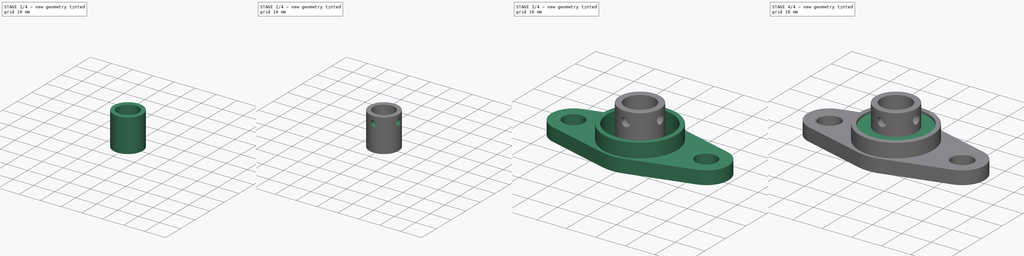
[diagram: build sequence overview — one tinted view per stage of 4, left to right]
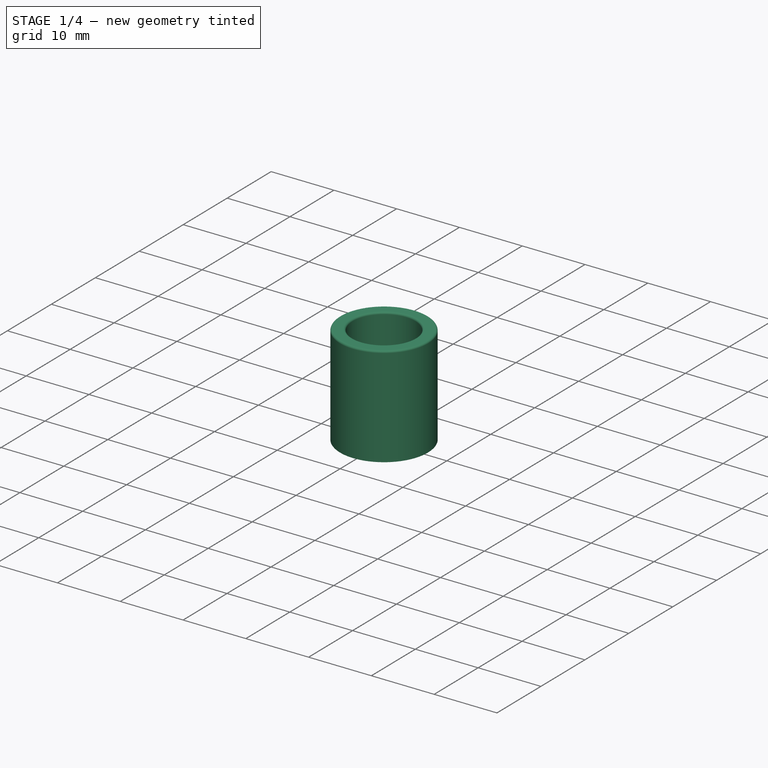
[diagram: stage 1 of 4 — iso view after this stage's code; geometry added in this stage tinted green]
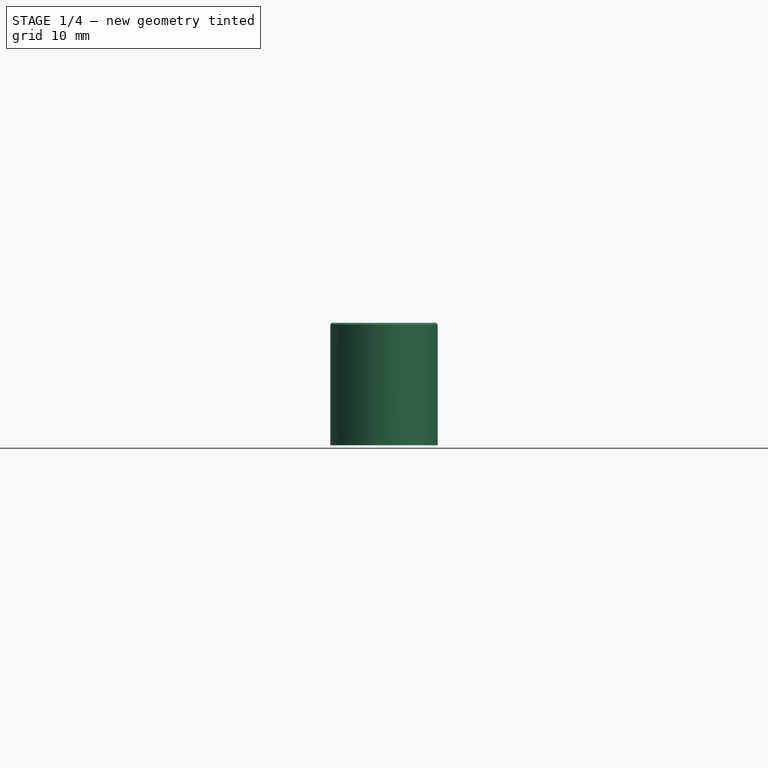
[diagram: stage 1 of 4 — front view after this stage's code; geometry added in this stage tinted green]
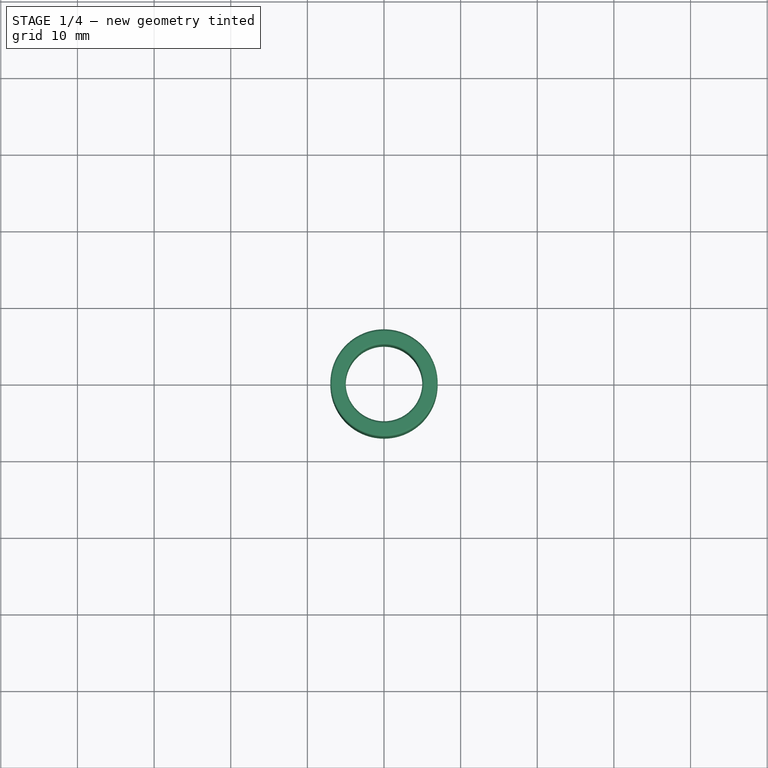
[diagram: stage 1 of 4 — top view after this stage's code; geometry added in this stage tinted green]
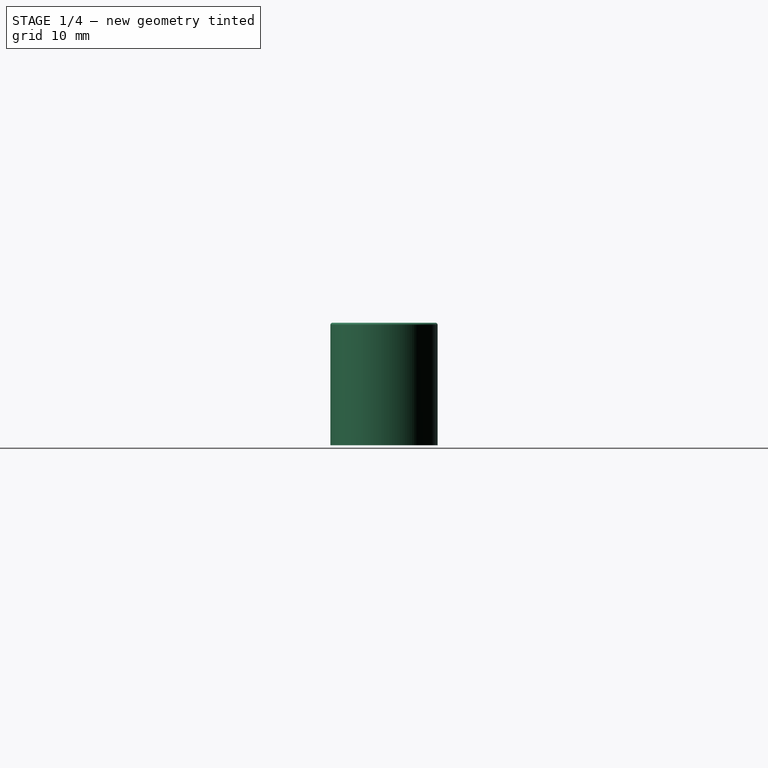
[diagram: stage 1 of 4 — right view after this stage's code; geometry added in this stage tinted green]
FCSTD DOCUMENT  (FreeCAD 1.0R39319 (Git))
Label: Pillow-KFL10
License: All rights reserved
LicenseURL: http://en.wikipedia.org/wiki/All_rights_reserved
objects: Sketcher::SketchObject×4, PartDesign::Pad×4, PartDesign::Body×3, PartDesign::Fillet×2, PartDesign::SubtractiveCylinder×2, PartDesign::Chamfer×1
note: 38 computed .brp shape members not serialized (recipe doc carries the construction recipe); baked Part::Feature solids carry a one-line shape summary decoded from their .brp

FEATURE [Sketcher::SketchObject] Sketch
  ArcFitTolerance = 0
  AttachmentSupport = -> [XY_Plane]
  FullyConstrained = true
  MakeInternals = false
  MapMode = 5
  sketch-geometry (2):
    g0: Circle CenterX=0 CenterY=0 CenterZ=0 NormalX=0 NormalY=0 NormalZ=1 AngleXU=0 Radius=5
    g1: Circle CenterX=0 CenterY=0 CenterZ=0 NormalX=0 NormalY=0 NormalZ=1 AngleXU=0 Radius=7
  constraints (4):
    c: Coincident(g0,g-1)
    c: Diameter(g0) = 10
    c: Coincident(g1,g0)
    c: Diameter(g1) = 14
FEATURE [PartDesign::Pad] Pad
  AllowMultiFace = false
  Direction = (0,0,1)
  Length = 16
  Length2 = 100
  Profile = -> Sketch
  Suppressed = false
  Type = 0
FEATURE [PartDesign::Body] Body002
  AllowCompound = false
  Group = -> [Sketch002,Pad002,Sketch003,Pad003,Fillet,Chamfer]
  Origin = -> Origin002
  Tip = -> Chamfer
FEATURE [PartDesign::Fillet] Fillet001
  Base = -> Pad [Edge3,Edge6]
  BaseFeature = -> Pad
  Radius = 0.3
  Refine = true
  SupportTransform = false
  Suppressed = false
  UseAllEdges = false
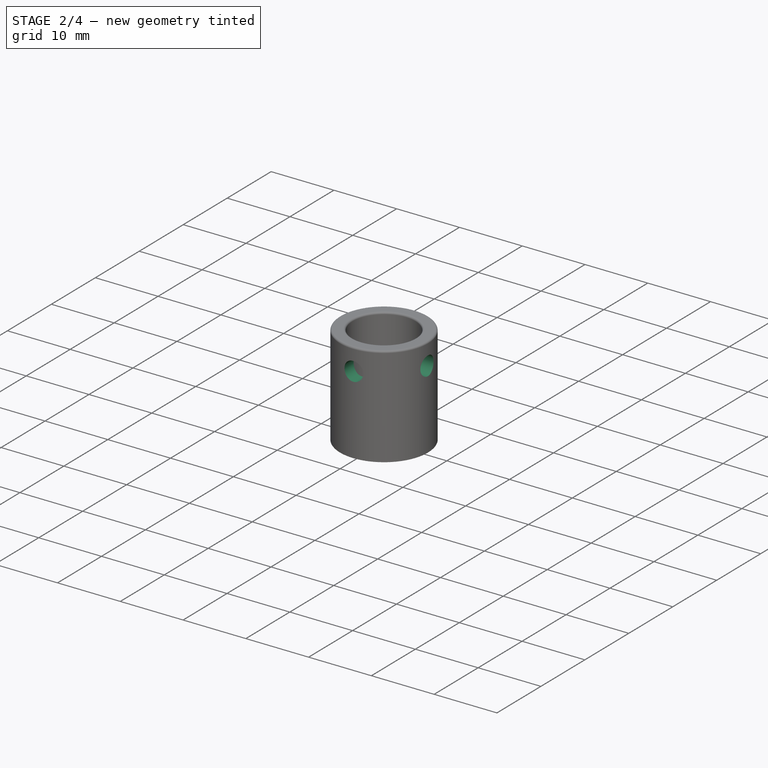
[diagram: stage 2 of 4 — iso view after this stage's code; geometry added in this stage tinted green]
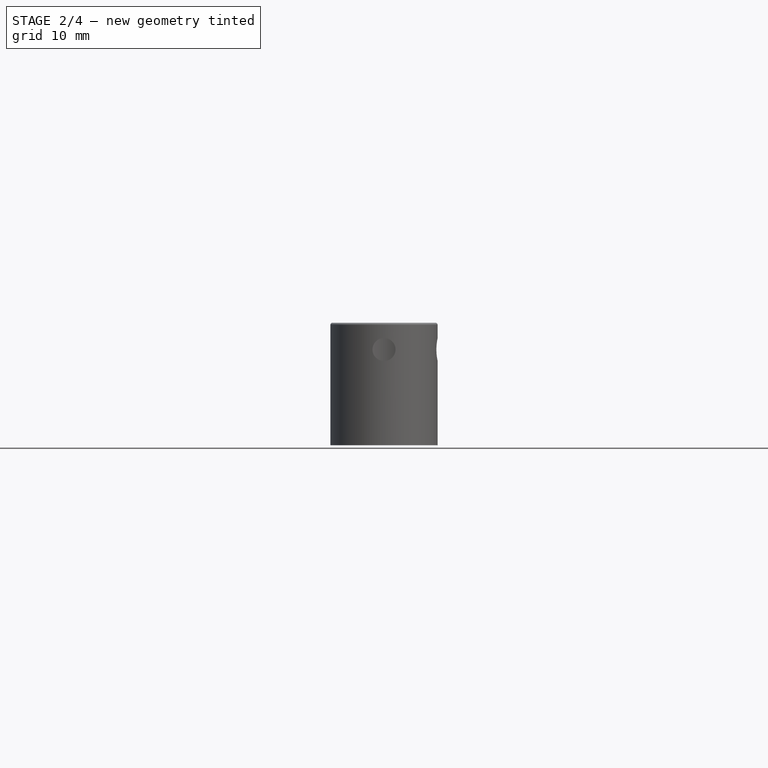
[diagram: stage 2 of 4 — front view after this stage's code; geometry added in this stage tinted green]
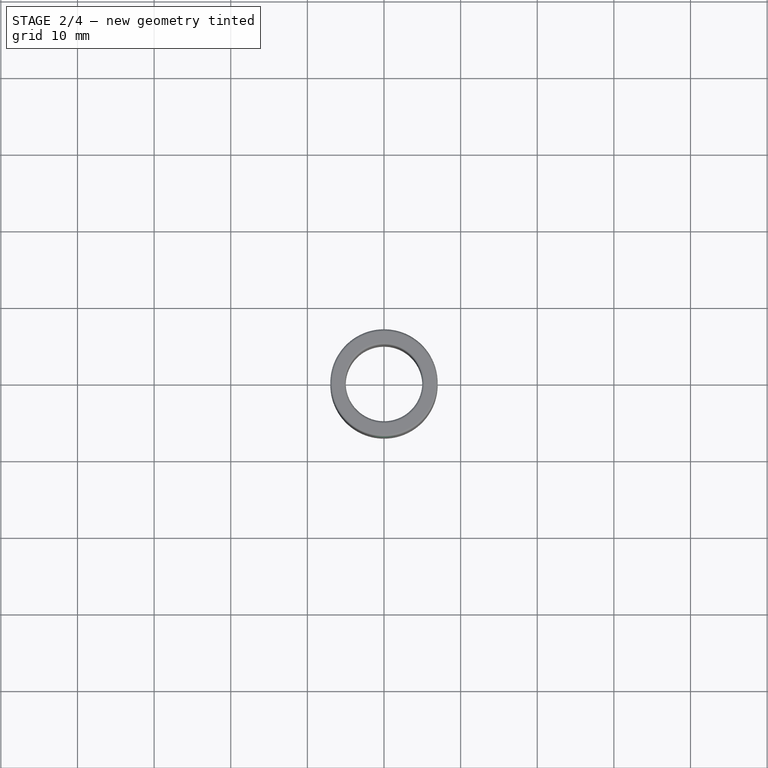
[diagram: stage 2 of 4 — top view after this stage's code; geometry added in this stage tinted green]
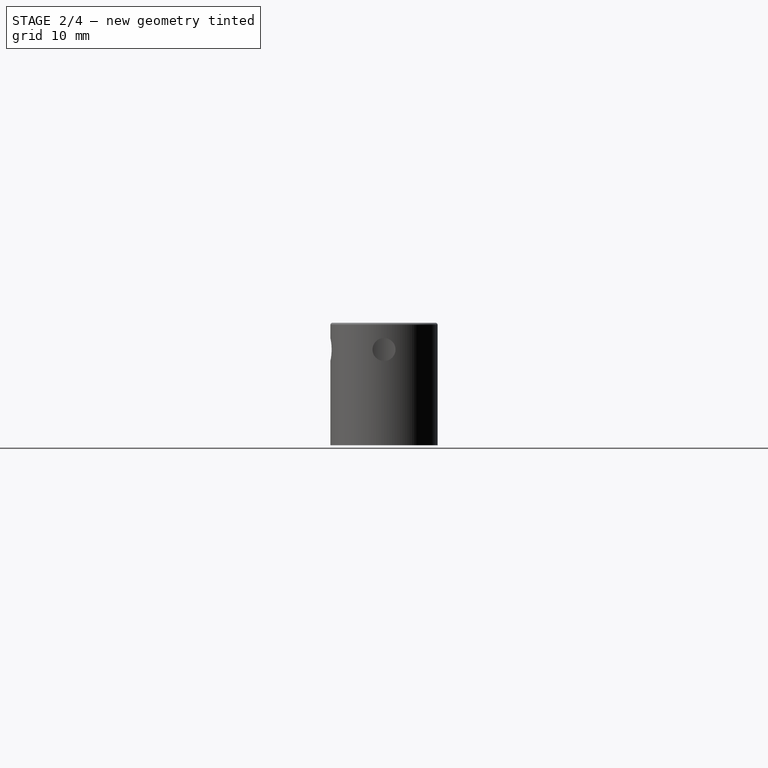
[diagram: stage 2 of 4 — right view after this stage's code; geometry added in this stage tinted green]
FEATURE [PartDesign::SubtractiveCylinder] Cylinder
  Angle = 360
  AttacherType = Attacher::AttachEngine3D
  AttachmentOffset = pos=(0,12.5,0) rot=(0,0,1;0rad)
  AttachmentSupport = -> [YZ_Plane]
  BaseFeature = -> Fillet001
  FirstAngle = 0
  Height = 8
  MapMode = 5
  Placement = pos=(0,0,12.5) rot=(0.57735,0.57735,0.57735;2.0944rad)
  Radius = 1.5
  SecondAngle = 0
  Suppressed = false
FEATURE [PartDesign::SubtractiveCylinder] Cylinder001
  Angle = 360
  AttacherType = Attacher::AttachEngine3D
  AttachmentOffset = pos=(0,12.5,0) rot=(0,0,1;0rad)
  AttachmentSupport = -> [XZ_Plane]
  BaseFeature = -> Cylinder
  FirstAngle = 0
  Height = 10
  MapMode = 5
  Placement = pos=(0,2.8e-15,12.5) rot=(1,0,0;1.5708rad)
  Radius = 1.5
  SecondAngle = 0
  Suppressed = false
FEATURE [PartDesign::Body] Body
  AllowCompound = false
  Group = -> [Sketch,Pad,Fillet001,Cylinder,Cylinder001]
  Origin = -> Origin
  Tip = -> Cylinder001
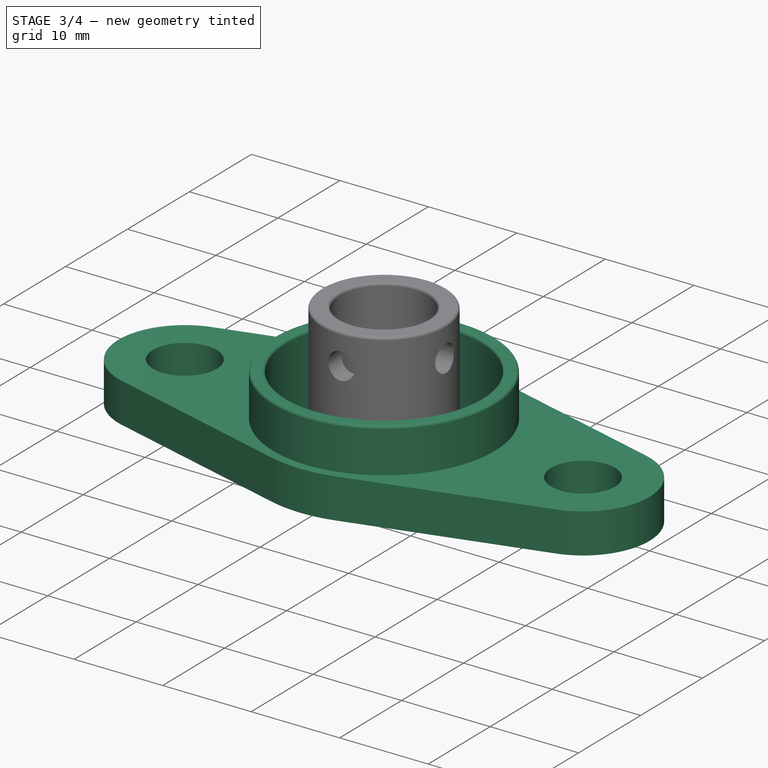
[diagram: stage 3 of 4 — iso view after this stage's code; geometry added in this stage tinted green]
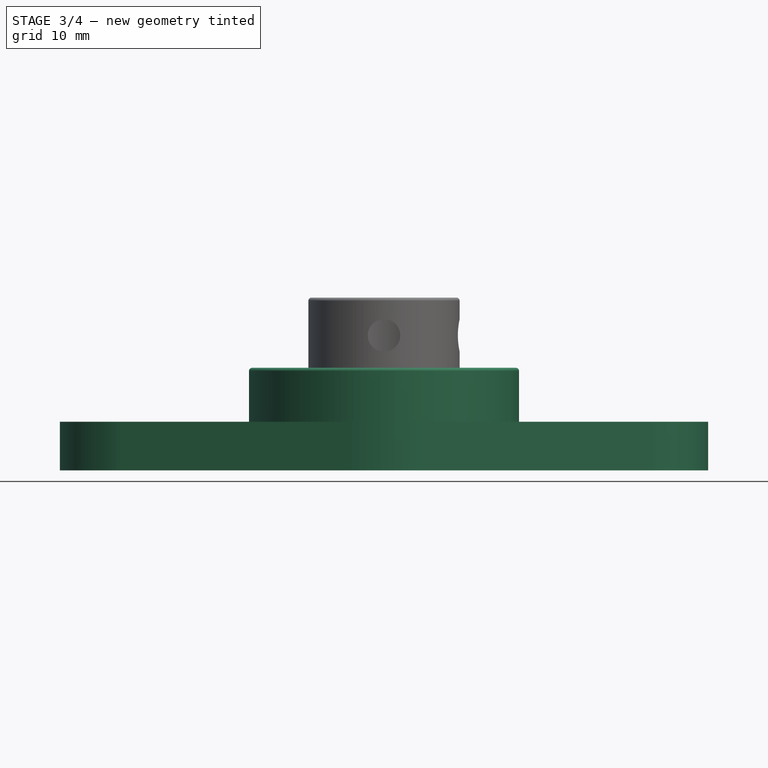
[diagram: stage 3 of 4 — front view after this stage's code; geometry added in this stage tinted green]
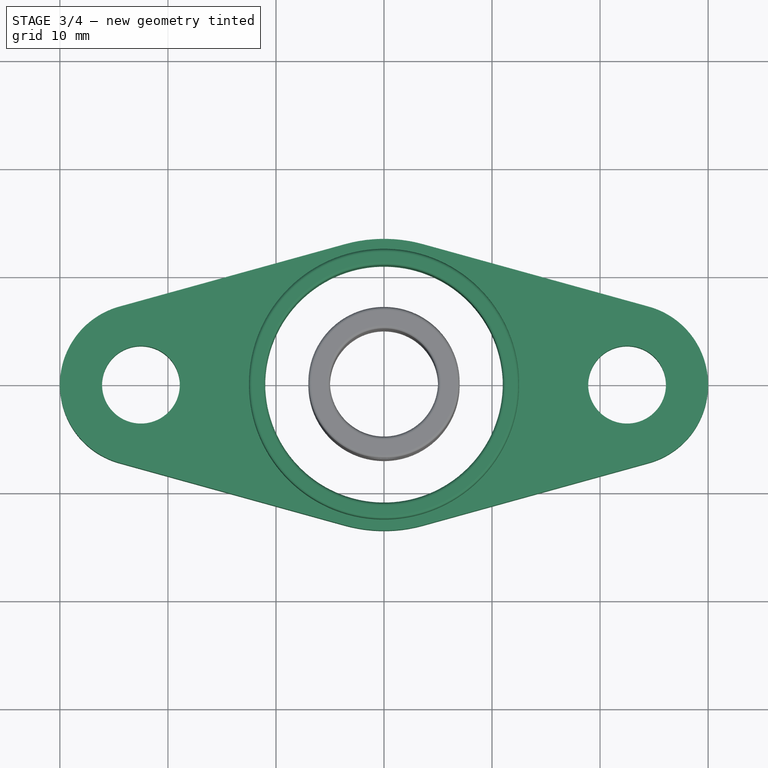
[diagram: stage 3 of 4 — top view after this stage's code; geometry added in this stage tinted green]
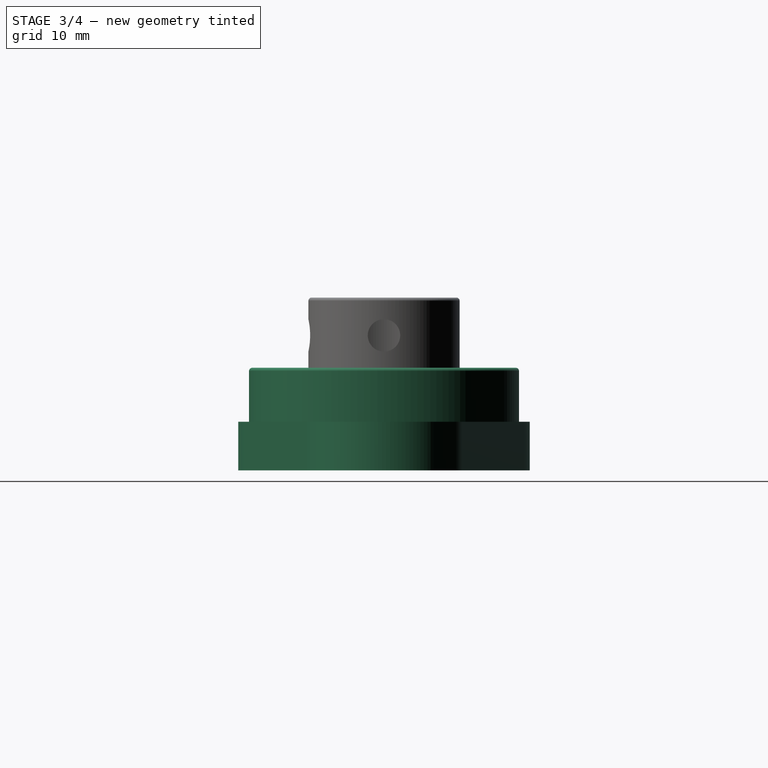
[diagram: stage 3 of 4 — right view after this stage's code; geometry added in this stage tinted green]
FEATURE [PartDesign::Body] Body001
  AllowCompound = false
  Group = -> [Sketch001,Pad001]
  Origin = -> Origin001
  Tip = -> Pad001
FEATURE [Sketcher::SketchObject] Sketch002
  ArcFitTolerance = 0
  AttachmentSupport = -> [XY_Plane002]
  FullyConstrained = true
  MakeInternals = false
  MapMode = 5
  sketch-geometry (11):
    g0: ArcOfCircle CenterX=-22.5 CenterY=0 CenterZ=0 NormalX=0 NormalY=0 NormalZ=1 AngleXU=0 Radius=7.5 StartAngle=1.84073 EndAngle=4.44246
    g1: ArcOfCircle CenterX=22.5 CenterY=0 CenterZ=0 NormalX=0 NormalY=0 NormalZ=1 AngleXU=0 Radius=7.5 StartAngle=4.98232 EndAngle=7.58405
    g2: ArcOfCircle CenterX=0 CenterY=0 CenterZ=0 NormalX=0 NormalY=0 NormalZ=1 AngleXU=0 Radius=13.5 StartAngle=1.30086 EndAngle=1.84073
    g3: ArcOfCircle CenterX=0 CenterY=0 CenterZ=0 NormalX=0 NormalY=0 NormalZ=1 AngleXU=0 Radius=13.5 StartAngle=4.44246 EndAngle=4.98232
    g4: LineSegment StartX=-24.5 StartY=-7.22842 StartZ=0 EndX=-3.6 EndY=-13.0111 EndZ=0
    g5: LineSegment StartX=-3.6 StartY=13.0111 StartZ=0 EndX=-24.5 EndY=7.22842 EndZ=0
    g6: LineSegment StartX=3.6 StartY=13.0111 StartZ=0 EndX=24.5 EndY=7.22842 EndZ=0
    g7: LineSegment StartX=24.5 StartY=-7.22842 StartZ=0 EndX=3.6 EndY=-13.0111 EndZ=0
    g8: Circle CenterX=-22.5 CenterY=0 CenterZ=0 NormalX=0 NormalY=0 NormalZ=1 AngleXU=0 Radius=3.6
    g9: Circle CenterX=22.5 CenterY=0 CenterZ=0 NormalX=0 NormalY=0 NormalZ=1 AngleXU=0 Radius=3.6
    g10: Circle CenterX=0 CenterY=0 CenterZ=0 NormalX=0 NormalY=0 NormalZ=1 AngleXU=0 Radius=11
  constraints (23):
    c: PointOnObject(g0,g-1)
    c: Symmetric(g1,g0,g-2)
    c: Equal(g1,g0)
    c: Tangent(g6,g1) = 1.5708
    c: Tangent(g5,g0) = -1.5708
    c: Tangent(g5,g2) = -1.5708
    c: Tangent(g6,g2) = 1.5708
    c: Tangent(g4,g3) = -1.5708
    c: Tangent(g7,g3) = 1.5708
    c: Tangent(g7,g1) = 1.5708
    c: Tangent(g4,g0) = -1.5708
    c: Coincident(g8,g0)
    c: Coincident(g9,g1)
    c: DistanceX(g0,g1) = 45
    c: Equal(g8,g9)
    c: Diameter(g9) = 7.2
    c: Equal(g2,g3)
    c: Coincident(g3,g-1)
    c: Coincident(g2,g3)
    c: Diameter(g2) = 27
    c: Diameter(g1) = 15
    c: Diameter(g10) = 22
    c: Coincident(g10,g2)
FEATURE [PartDesign::Pad] Pad002
  AllowMultiFace = false
  Direction = (0,0,1)
  Length = 4.5
  Length2 = 100
  Profile = -> Sketch002
  Suppressed = false
  Type = 0
FEATURE [Sketcher::SketchObject] Sketch003
  ArcFitTolerance = 0
  AttachmentSupport = -> [Pad002]
  FullyConstrained = true
  MakeInternals = false
  MapMode = 5
  Placement = pos=(0,0,4.5) rot=(0,0,1;0rad)
  sketch-geometry (2):
    g0: Circle CenterX=0 CenterY=0 CenterZ=0 NormalX=0 NormalY=0 NormalZ=1 AngleXU=0 Radius=12.5
    g1: Circle CenterX=0 CenterY=0 CenterZ=0 NormalX=0 NormalY=0 NormalZ=1 AngleXU=0 Radius=11
  constraints (4):
    c: Coincident(g0,g-1)
    c: Coincident(g1,g0)
    c: Diameter(g1) = 22
    c: Diameter(g0) = 25
FEATURE [PartDesign::Pad] Pad003
  AllowMultiFace = false
  BaseFeature = -> Pad002
  Direction = (0,0,1)
  Length = 5
  Length2 = 100
  Profile = -> Sketch003
  Suppressed = false
  Type = 0
FEATURE [PartDesign::Fillet] Fillet
  Base = -> Pad003 [Edge36,Edge38]
  BaseFeature = -> Pad003
  Radius = 0.3
  Refine = true
  SupportTransform = false
  Suppressed = false
  UseAllEdges = false
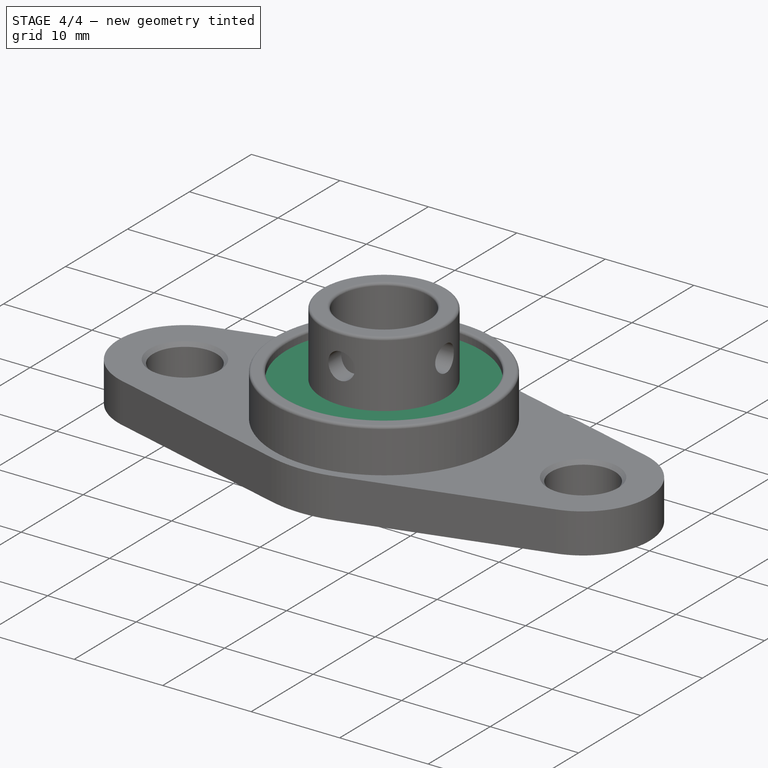
[diagram: stage 4 of 4 — iso view after this stage's code; geometry added in this stage tinted green]
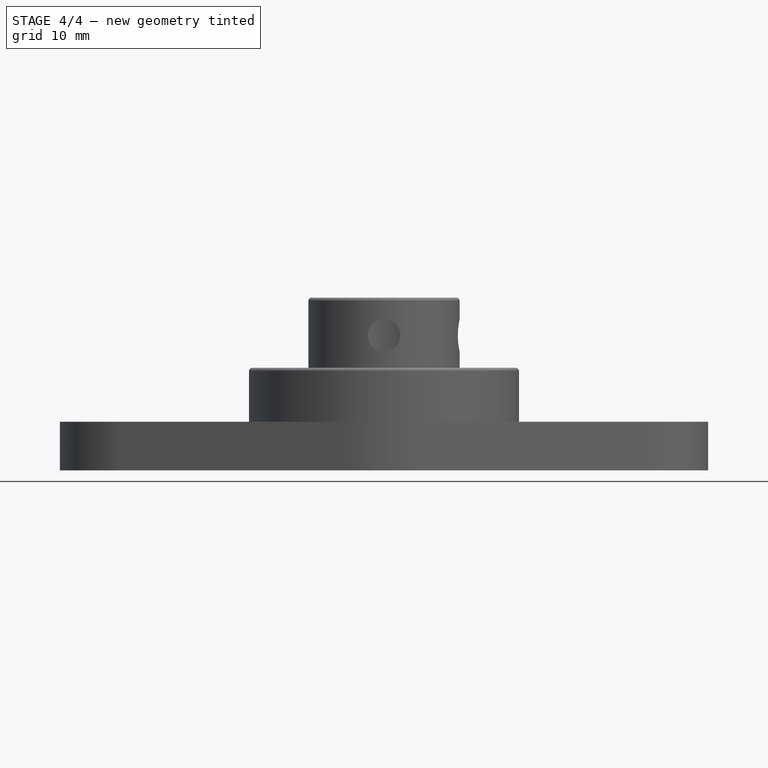
[diagram: stage 4 of 4 — front view after this stage's code; geometry added in this stage tinted green]
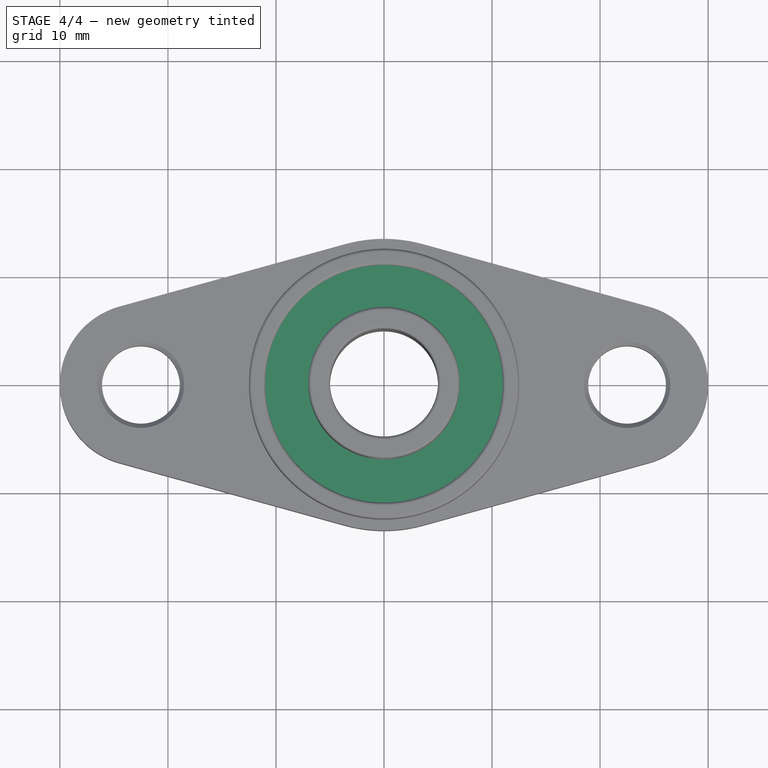
[diagram: stage 4 of 4 — top view after this stage's code; geometry added in this stage tinted green]
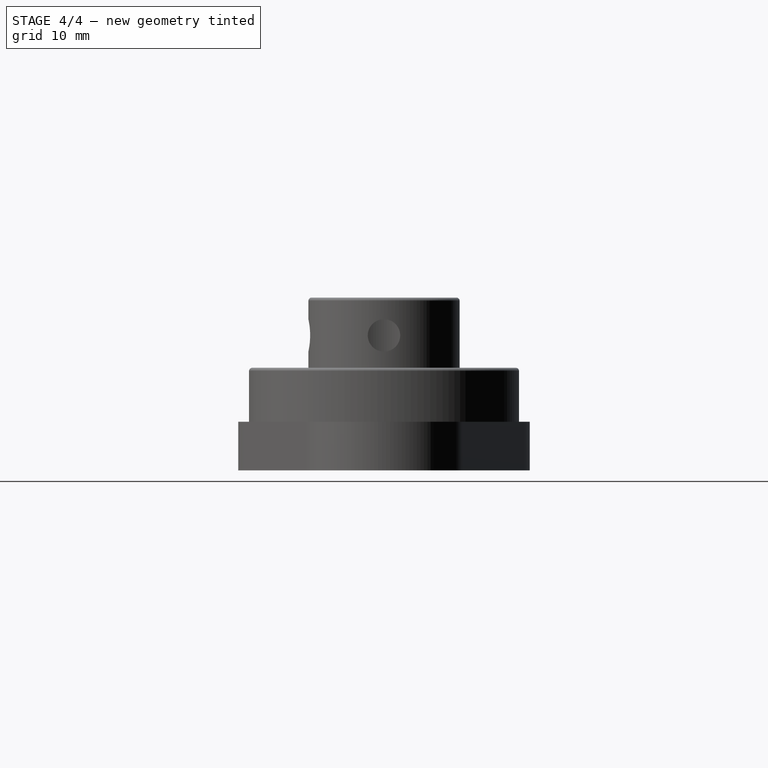
[diagram: stage 4 of 4 — right view after this stage's code; geometry added in this stage tinted green]
FEATURE [Sketcher::SketchObject] Sketch001
  ArcFitTolerance = 0
  AttachmentSupport = -> [XY_Plane001]
  FullyConstrained = true
  MakeInternals = false
  MapMode = 5
  sketch-geometry (2):
    g0: Circle CenterX=0 CenterY=0 CenterZ=0 NormalX=0 NormalY=0 NormalZ=1 AngleXU=0 Radius=7
    g1: Circle CenterX=0 CenterY=0 CenterZ=0 NormalX=0 NormalY=0 NormalZ=1 AngleXU=0 Radius=11
  constraints (4):
    c: Coincident(g0,g-1)
    c: Coincident(g1,g0)
    c: Diameter(g0) = 14
    c: Diameter(g1) = 22
FEATURE [PartDesign::Pad] Pad001
  AllowMultiFace = false
  Direction = (0,0,1)
  Length = 8.5
  Length2 = 100
  Profile = -> Sketch001
  Suppressed = false
  Type = 0
FEATURE [PartDesign::Chamfer] Chamfer
  Angle = 45
  Base = -> Fillet [Edge14,Edge15,Edge34,Edge36]
  BaseFeature = -> Fillet
  ChamferType = 0
  FlipDirection = false
  Refine = true
  Size = 0.4
  Size2 = 1
  SupportTransform = false
  Suppressed = false
  UseAllEdges = false
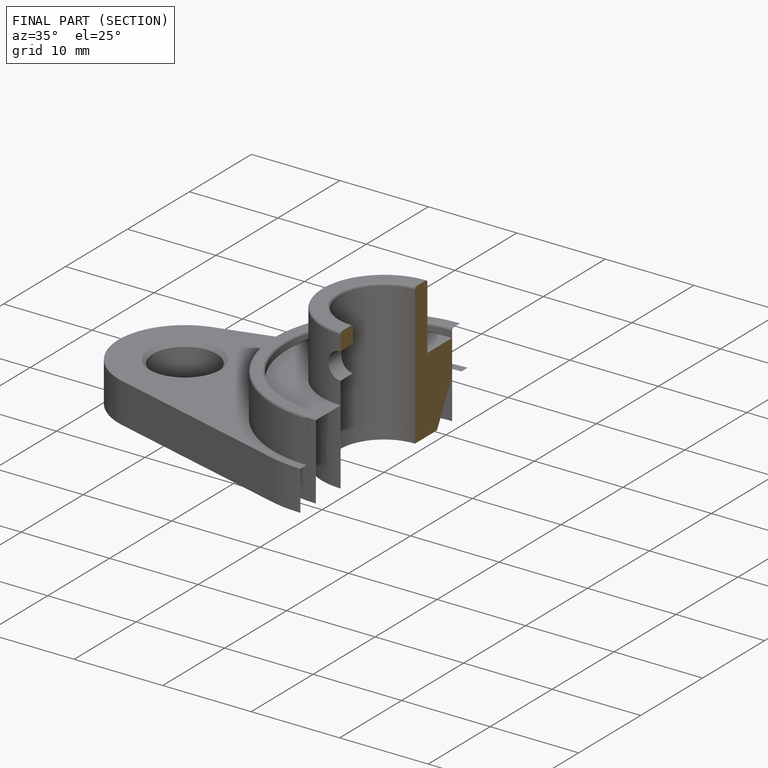
[diagram: finished part — half-section view (interior)]
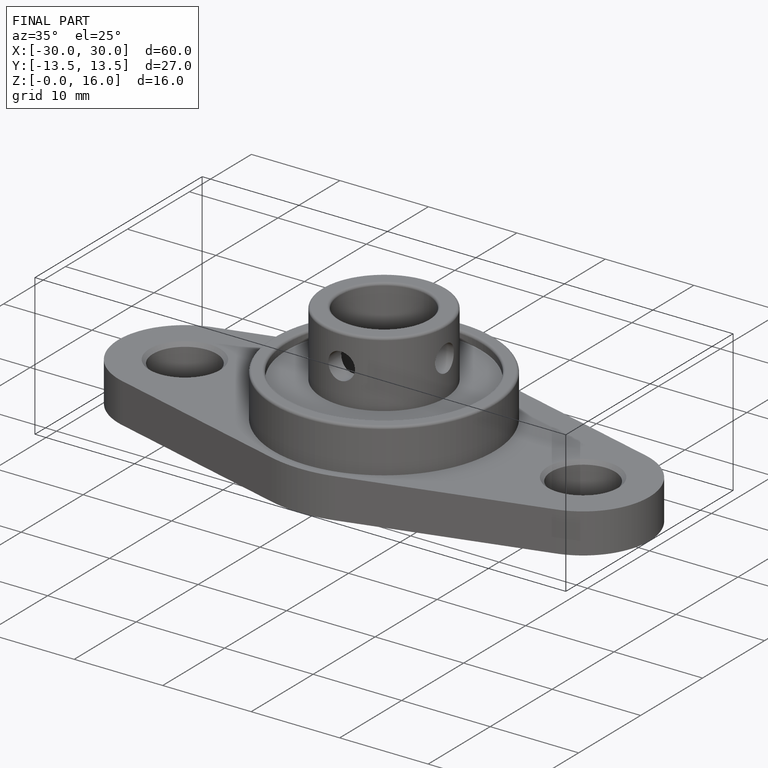
[diagram: finished part — iso view with bounding-box wireframe]
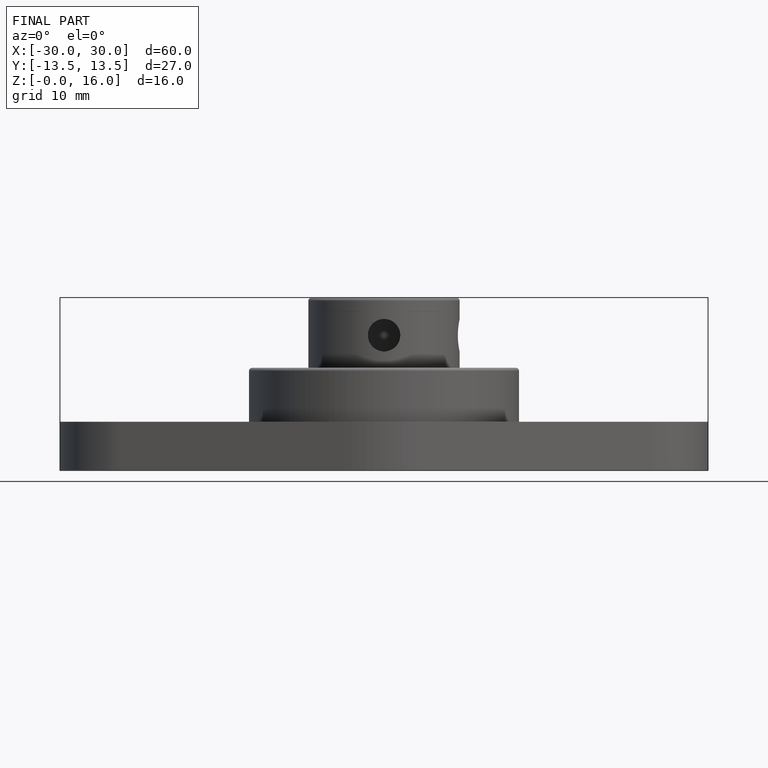
[diagram: finished part — front view with bounding-box wireframe]
